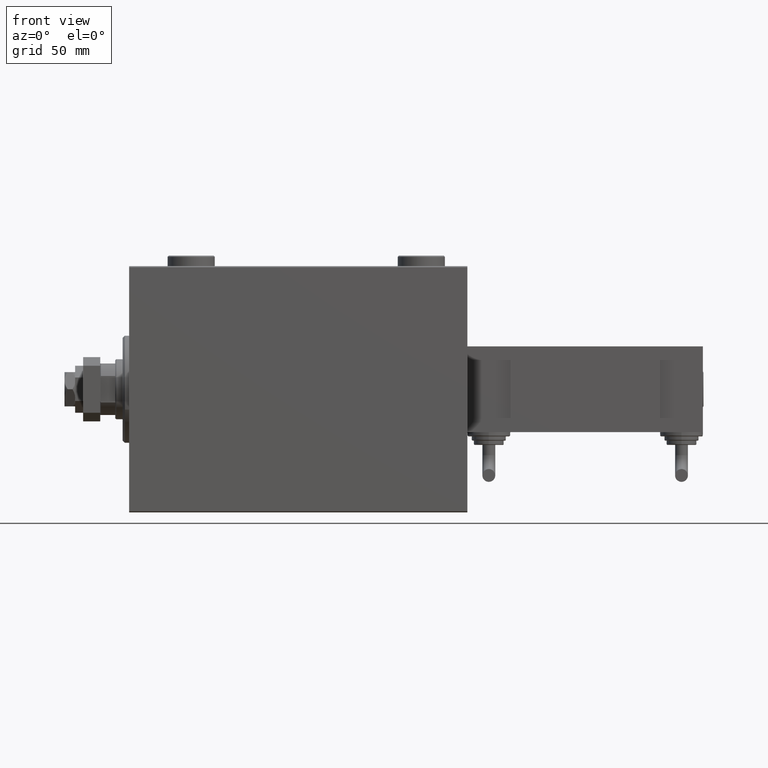
[diagram: clean part render]
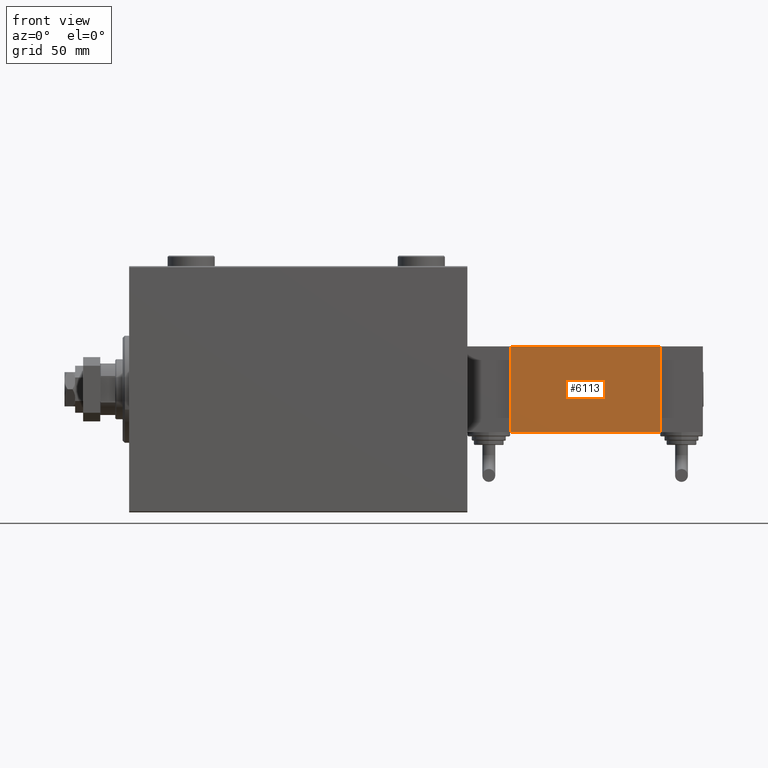
[diagram: same view with one face highlighted and labeled with its STEP entity id]
A machine part, front view. The second image highlights one B-rep face of the part: STEP entity #6113.
In plain terms, the highlighted planar face has unit normal (0, 1, 0).
Its self-contained STEP definition (entity closure, byte-faithful):
#317 = VERTEX_POINT ( 'NONE', #37451 ) ;
#747 = LINE ( 'NONE', #24466, #45154 ) ;
#2006 = DIRECTION ( 'NONE',  ( 1.000000000000000000, 0.000000000000000000, 0.000000000000000000 ) ) ;
#2070 = VECTOR ( 'NONE', #29551, 1000.000000000000000 ) ;
#2650 = VERTEX_POINT ( 'NONE', #4365 ) ;
#3684 = AXIS2_PLACEMENT_3D ( 'NONE', #36585, #13600, #24968 ) ;
#3956 = VERTEX_POINT ( 'NONE', #24700 ) ;
#4365 = CARTESIAN_POINT ( 'NONE',  ( 20.00000000000000000, -22.00000000000000000, 0.000000000000000000 ) ) ;
#6113 = ADVANCED_FACE ( 'NONE', ( #40455 ), #48967, .F. ) ;
#6245 = ORIENTED_EDGE ( 'NONE', *, *, #49053, .F. ) ;
#7926 = EDGE_LOOP ( 'NONE', ( #45905, #35627, #6245, #33834 ) ) ;
#10596 = EDGE_CURVE ( 'NONE', #3956, #12267, #22089, .T. ) ;
#11218 = VECTOR ( 'NONE', #45835, 1000.000000000000000 ) ;
#12267 = VERTEX_POINT ( 'NONE', #31355 ) ;
#13557 = CARTESIAN_POINT ( 'NONE',  ( -19.99999999999999289, -22.00000000000000000, 0.000000000000000000 ) ) ;
#13600 = DIRECTION ( 'NONE',  ( 0.000000000000000000, 1.000000000000000000, 0.000000000000000000 ) ) ;
#16987 = DIRECTION ( 'NONE',  ( -0.000000000000000000, -0.000000000000000000, -1.000000000000000000 ) ) ;
#17693 = LINE ( 'NONE', #13557, #2070 ) ;
#19775 = VECTOR ( 'NONE', #2006, 1000.000000000000000 ) ;
#22089 = LINE ( 'NONE', #25713, #11218 ) ;
#24466 = CARTESIAN_POINT ( 'NONE',  ( 20.00000000000000000, -22.00000000000000000, 70.00000000000000000 ) ) ;
#24700 = CARTESIAN_POINT ( 'NONE',  ( -19.99999999999999289, -22.00000000000000000, 70.00000000000000000 ) ) ;
#24968 = DIRECTION ( 'NONE',  ( 0.000000000000000000, -0.000000000000000000, 1.000000000000000000 ) ) ;
#25713 = CARTESIAN_POINT ( 'NONE',  ( -19.99999999999999289, -22.00000000000000000, 70.00000000000000000 ) ) ;
#29551 = DIRECTION ( 'NONE',  ( 1.000000000000000000, 0.000000000000000000, 0.000000000000000000 ) ) ;
#29858 = LINE ( 'NONE', #50240, #19775 ) ;
#31355 = CARTESIAN_POINT ( 'NONE',  ( -19.99999999999999289, -22.00000000000000000, 0.000000000000000000 ) ) ;
#33293 = EDGE_CURVE ( 'NONE', #12267, #2650, #17693, .T. ) ;
#33834 = ORIENTED_EDGE ( 'NONE', *, *, #10596, .T. ) ;
#35627 = ORIENTED_EDGE ( 'NONE', *, *, #43542, .F. ) ;
#36585 = CARTESIAN_POINT ( 'NONE',  ( -19.99999999999999289, -22.00000000000000000, 70.00000000000000000 ) ) ;
#37451 = CARTESIAN_POINT ( 'NONE',  ( 20.00000000000000000, -22.00000000000000000, 70.00000000000000000 ) ) ;
#40455 = FACE_OUTER_BOUND ( 'NONE', #7926, .T. ) ;
#43542 = EDGE_CURVE ( 'NONE', #317, #2650, #747, .T. ) ;
#45154 = VECTOR ( 'NONE', #16987, 1000.000000000000000 ) ;
#45835 = DIRECTION ( 'NONE',  ( -0.000000000000000000, -0.000000000000000000, -1.000000000000000000 ) ) ;
#45905 = ORIENTED_EDGE ( 'NONE', *, *, #33293, .T. ) ;
#48967 = PLANE ( 'NONE',  #3684 ) ;
#49053 = EDGE_CURVE ( 'NONE', #3956, #317, #29858, .T. ) ;
#50240 = CARTESIAN_POINT ( 'NONE',  ( -19.99999999999999289, -22.00000000000000000, 70.00000000000000000 ) ) ;